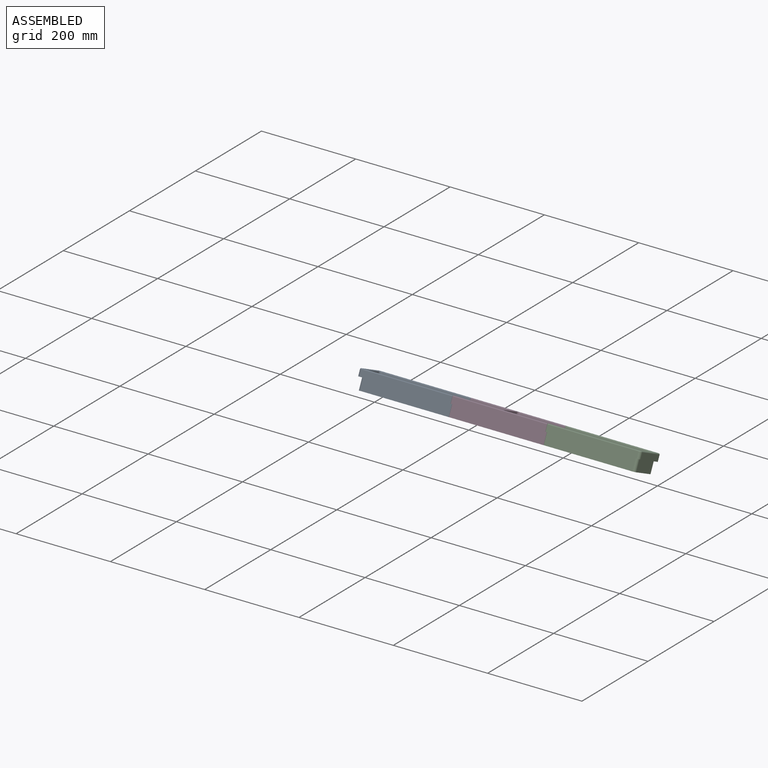
[diagram: assembled view]
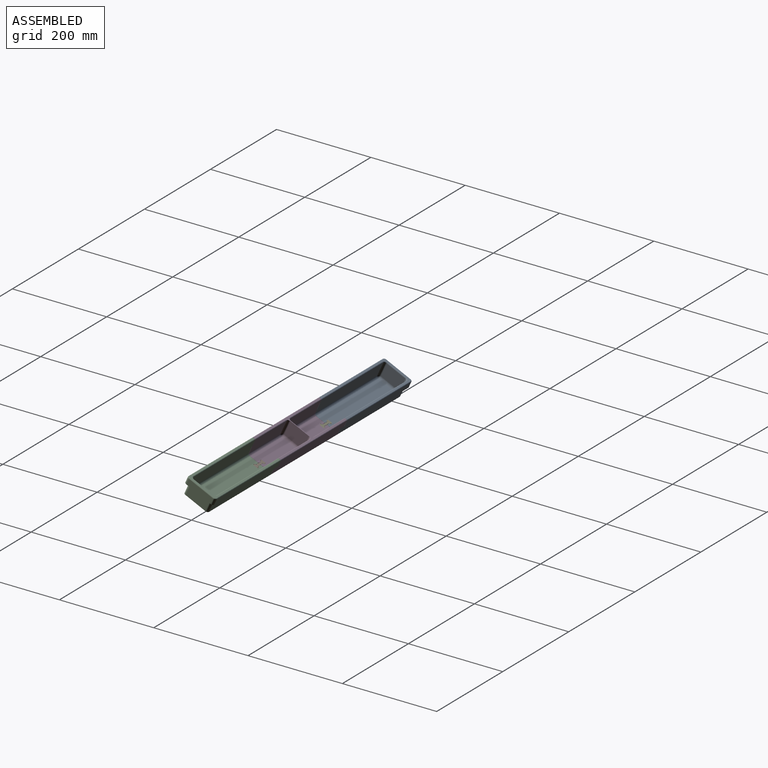
[diagram: assembled view, second angle]
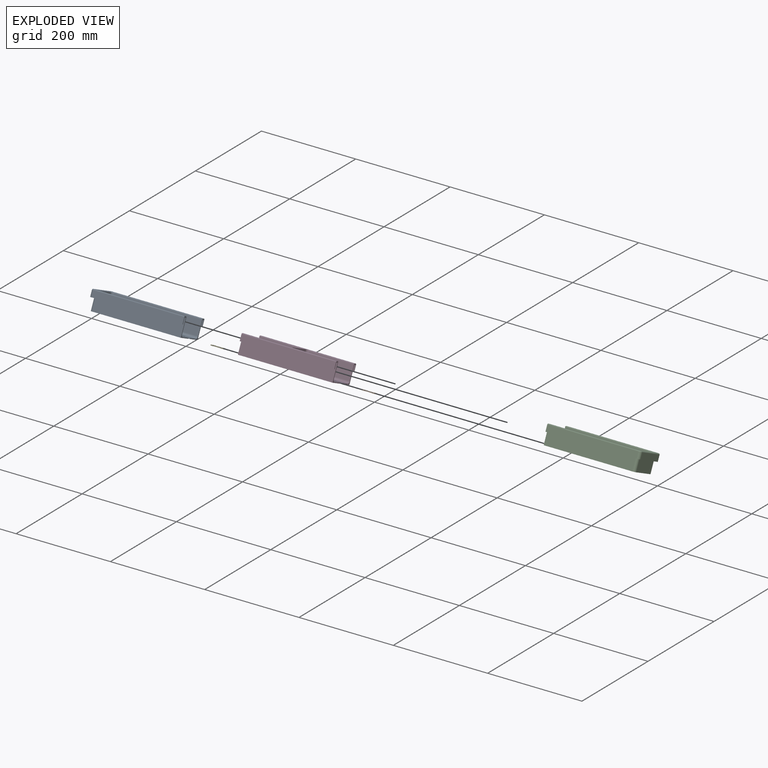
[diagram: exploded view]
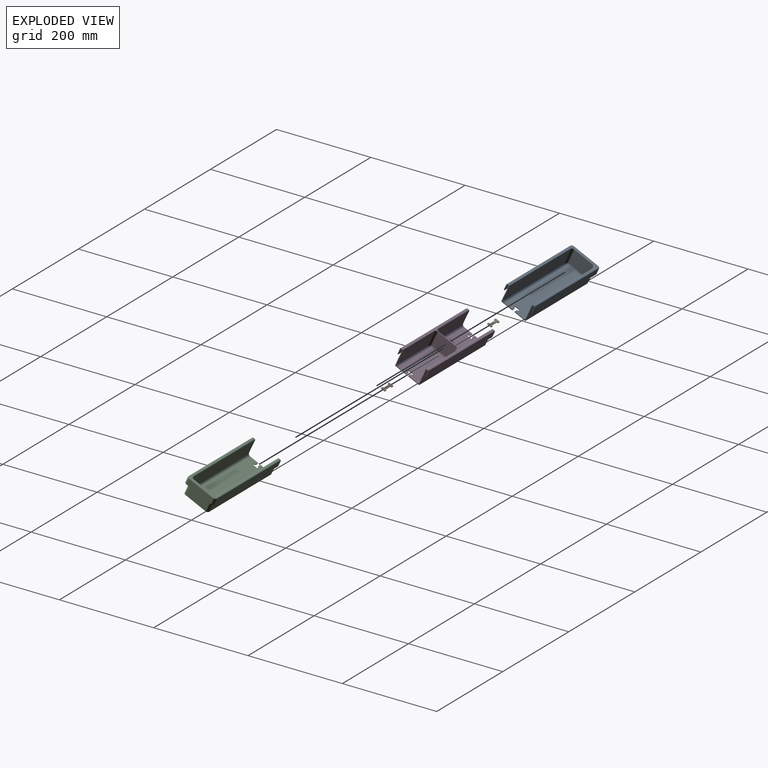
[diagram: exploded view, second angle]
ASSEMBLY  parts=5 mates=4
PART A: 78 faces, bbox 198.5x67.6x38.6 mm
  f0: plane 4.86x4.86mm, normal (0,0,-1), area 5.5mm2, adj f58,f59,f61,f69
  f1: plane 4.86x4.86mm, normal (0,0,-1), area 5.5mm2, adj f55,f56,f58,f67
  f2: plane 38.58x30.07mm, normal (1,0,0), area 136mm2, adj f3,f5,f7,f9,f12,f14,f16,f19
  f3: plane 191.41x11.2mm, normal (0,-1,0), area 2121mm2, adj f2,f7,f23,f24,f25,f56,f63,f66
  f4: plane 191.41x11.2mm, normal (0,1,0), area 2121mm2, adj f7,f8,f20,f21,f22,f59,f65,f68
  f5: plane 187.86x35.05mm, normal (0,1,0), area 6561.7mm2, adj f2,f12,f23,f24,f25,f40,f54,f62
  f6: plane 187.86x35.05mm, normal (0,-1,0), area 6561.7mm2, adj f8,f12,f20,f21,f22,f41,f60,f64
  f7: plane 198.12x66.75mm, normal (0,0,-1), area 747.4mm2, adj f2,f3,f4,f8,f10,f13,f14,f15
  f8: plane 38.58x30.07mm, normal (1,0,0), area 136mm2, adj f4,f6,f7,f9,f12,f15,f18,f19
  f9: plane 196.34x63.2mm, normal (0,0,1), area 1476.5mm2, adj f2,f8,f44,f45,f46,f47,f48,f49
  f10: plane 53.34x11.2mm, normal (1,0,0), area 597.5mm2, adj f7,f58,f66,f68
  f11: plane 46.23x35.05mm, normal (-1,0,0), area 1620.4mm2, adj f12,f40,f41,f57
  f12: plane 192.94x56.39mm, normal (0,0,-1), area 10778mm2, adj f2,f5,f6,f8,f11,f26,f27,f28
  f13: plane 56.59x12.95mm, normal (-1,0,0), area 733.1mm2, adj f7,f42,f43,f47
  f14: plane 193.04x12.95mm, normal (0,1,0), area 2500.6mm2, adj f2,f7,f42,f46
  f15: plane 193.04x12.95mm, normal (0,-1,0), area 2500.6mm2, adj f7,f8,f43,f44
  f16: plane 186.23x30.1mm, normal (0,-1,0), area 5605.4mm2, adj f2,f36,f39,f49
  f17: plane 42.98x30.1mm, normal (1,0,0), area 1293.6mm2, adj f34,f37,f39,f52
  f18: plane 186.23x30.1mm, normal (0,1,0), area 5605.4mm2, adj f8,f33,f34,f51
  f19: plane 186.23x42.98mm, normal (0,0,1), area 7913.4mm2, adj f2,f8,f26,f27,f28,f29,f30,f31
  f20: plane 11.01x3.56mm, normal (1,0,0), area 37.6mm2, adj f4,f6,f21,f64,f65
  f21: plane 3.56x2.54mm, normal (0,0,-1), area 9mm2, adj f4,f6,f20,f22
  f22: plane 11.01x3.56mm, normal (-1,0,0), area 37.6mm2, adj f4,f6,f21,f59,f60
  f23: plane 11.01x3.56mm, normal (-1,0,0), area 37.6mm2, adj f3,f5,f24,f54,f56
  f24: plane 3.56x2.54mm, normal (0,0,-1), area 9mm2, adj f3,f5,f23,f25
  f25: plane 11.01x3.56mm, normal (1,0,0), area 37.6mm2, adj f3,f5,f24,f62,f63
  f26: plane 6.1x1.63mm, normal (0,-1,0), area 9.9mm2, adj f12,f19,f70,f76
  f27: plane 6.1x1.63mm, normal (0,1,0), area 9.9mm2, adj f12,f19,f75,f77
  f28: plane 1.63x1.02mm, normal (-1,0,0), area 1.7mm2, adj f12,f19,f70,f71
  f29: plane 3.56x1.63mm, normal (0,-1,0), area 5.8mm2, adj f12,f19,f71,f72
  f30: plane 8.64x1.63mm, normal (1,0,0), area 14mm2, adj f12,f19,f72,f73
  f31: plane 3.56x1.63mm, normal (0,1,0), area 5.8mm2, adj f12,f19,f73,f74
  f32: plane 1.63x1.02mm, normal (-1,0,0), area 1.7mm2, adj f12,f19,f74,f75
  f33: cylinder r=5.08mm len=186.23mm, axis (1,0,0), area 1486.1mm2, adj f8,f18,f19,f35
  f34: cylinder r=5.08mm len=30.1mm, axis (0,0,1), area 240.2mm2, adj f17,f18,f35,f53
  f35: sphere r=5.08mm, area 40.5mm2, adj f33,f34,f37
  f36: cylinder r=5.08mm len=186.23mm, axis (-1,0,0), area 1486.1mm2, adj f2,f16,f19,f38
  f37: cylinder r=5.08mm len=42.98mm, axis (0,-1,0), area 342.9mm2, adj f17,f19,f35,f38
  f38: sphere r=5.08mm, area 40.5mm2, adj f36,f37,f39
  f39: cylinder r=5.08mm len=30.1mm, axis (0,0,-1), area 240.2mm2, adj f16,f17,f38,f50
  f40: cylinder r=5.08mm len=35.05mm, axis (0,0,1), area 279.7mm2, adj f5,f11,f12,f55
  f41: cylinder r=5.08mm len=35.05mm, axis (0,0,-1), area 279.7mm2, adj f6,f11,f12,f61
  f42: cylinder r=5.08mm len=12.95mm, axis (0,0,1), area 103.4mm2, adj f7,f13,f14,f48
  f43: cylinder r=5.08mm len=12.95mm, axis (0,0,-1), area 103.4mm2, adj f7,f13,f15,f45
  f44: cylinder r=1.78mm len=193.04mm, axis (-1,0,0), area 539.1mm2, adj f8,f9,f15,f45
  f45: torus R=3.3mm, axis (0,0,1), area 19.5mm2, adj f9,f43,f44,f47
  f46: cylinder r=1.78mm len=193.04mm, axis (1,0,0), area 539.1mm2, adj f2,f9,f14,f48
  f47: cylinder r=1.78mm len=56.59mm, axis (0,1,0), area 158.1mm2, adj f9,f13,f45,f48
  f48: torus R=3.3mm, axis (0,0,1), area 19.5mm2, adj f9,f42,f46,f47
  f49: cylinder r=1.78mm len=186.23mm, axis (1,0,0), area 520.1mm2, adj f2,f9,f16,f50
  f50: torus R=6.86mm, axis (0,0,1), area 25.1mm2, adj f9,f39,f49,f52
  f51: cylinder r=1.78mm len=186.23mm, axis (-1,0,0), area 520.1mm2, adj f8,f9,f18,f53
  f52: cylinder r=1.78mm len=42.98mm, axis (0,1,0), area 120mm2, adj f9,f17,f50,f53
  f53: torus R=6.86mm, axis (0,0,1), area 25.1mm2, adj f9,f34,f51,f52
  f54: cylinder r=1.91mm len=93.93mm, axis (1,0,0), area 269.1mm2, adj f5,f23,f55,f56
  f55: torus R=6.99mm, axis (0,0,1), area 26.8mm2, adj f1,f40,f54,f56,f57,f58
  f56: cylinder r=1.91mm len=97.49mm, axis (-1,0,0), area 279.6mm2, adj f1,f3,f23,f54,f55,f67
  f57: cylinder r=1.91mm len=46.23mm, axis (0,1,0), area 132.5mm2, adj f11,f55,f58,f61
  f58: cylinder r=1.91mm len=53.34mm, axis (0,-1,0), area 153.4mm2, adj f0,f1,f10,f55,f57,f61,f67,f69
  f59: cylinder r=1.91mm len=97.49mm, axis (1,0,0), area 279.6mm2, adj f0,f4,f22,f60,f61,f69
  f60: cylinder r=1.91mm len=93.93mm, axis (-1,0,0), area 269.1mm2, adj f6,f22,f59,f61
  f61: torus R=6.99mm, axis (0,0,1), area 26.8mm2, adj f0,f41,f57,f58,f59,f60
  f62: cylinder r=1.91mm len=91.39mm, axis (1,0,0), area 261.9mm2, adj f2,f5,f25,f63
  f63: cylinder r=1.91mm len=91.39mm, axis (-1,0,0), area 261.9mm2, adj f2,f3,f25,f62
  f64: cylinder r=1.91mm len=91.39mm, axis (-1,0,0), area 261.9mm2, adj f6,f8,f20,f65
  f65: cylinder r=1.91mm len=91.39mm, axis (1,0,0), area 261.9mm2, adj f4,f8,f20,f64
  f66: cylinder r=5.08mm len=11.2mm, axis (0,0,-1), area 89.4mm2, adj f3,f7,f10,f67
  f67: torus R=3.17mm, axis (0,0,1), area 20.6mm2, adj f1,f56,f58,f66
  f68: cylinder r=5.08mm len=11.2mm, axis (0,0,1), area 89.4mm2, adj f4,f7,f10,f69
  f69: torus R=3.17mm, axis (0,0,1), area 20.6mm2, adj f0,f58,f59,f68
  f70: cylinder r=0.76mm len=1.63mm, axis (0,0,1), area 1.9mm2, adj f12,f19,f26,f28
  f71: cylinder r=0.76mm len=1.63mm, axis (0,0,1), area 1.9mm2, adj f12,f19,f28,f29
  f72: cylinder r=0.76mm len=1.63mm, axis (0,0,-1), area 1.9mm2, adj f12,f19,f29,f30
  f73: cylinder r=0.76mm len=1.63mm, axis (0,0,1), area 1.9mm2, adj f12,f19,f30,f31
  f74: cylinder r=0.76mm len=1.63mm, axis (0,0,1), area 1.9mm2, adj f12,f19,f31,f32
  f75: cylinder r=0.76mm len=1.63mm, axis (0,0,-1), area 1.9mm2, adj f12,f19,f27,f32
  f76: cylinder r=0.76mm len=1.63mm, axis (0,0,1), area 1.9mm2, adj f2,f12,f19,f26
  f77: cylinder r=0.76mm len=1.63mm, axis (0,0,1), area 1.9mm2, adj f8,f12,f19,f27
PART B: 26 faces, bbox 25.7x9.7x1.6 mm
  f0: plane 1.63x1.02mm, normal (1,0,0), area 1.7mm2, adj f12,f13,f14,f19
  f1: plane 14.48x1.63mm, normal (0,-1,0), area 23.5mm2, adj f12,f13,f14,f21
  f2: plane 1.63x1.02mm, normal (-1,0,0), area 1.7mm2, adj f12,f13,f21,f22
  f3: plane 3.3x1.63mm, normal (0,-1,0), area 5.4mm2, adj f12,f13,f22,f23
  f4: plane 8.13x1.63mm, normal (1,0,0), area 13.2mm2, adj f12,f13,f23,f24
  f5: plane 3.3x1.63mm, normal (0,1,0), area 5.4mm2, adj f12,f13,f24,f25
  f6: plane 1.63x1.02mm, normal (-1,0,0), area 1.7mm2, adj f12,f13,f20,f25
  f7: plane 14.48x1.63mm, normal (0,1,0), area 23.5mm2, adj f12,f13,f15,f20
  f8: plane 1.63x1.02mm, normal (1,0,0), area 1.7mm2, adj f12,f13,f15,f16
  f9: plane 3.3x1.63mm, normal (0,1,0), area 5.4mm2, adj f12,f13,f16,f17
  f10: plane 8.13x1.63mm, normal (-1,0,0), area 13.2mm2, adj f12,f13,f17,f18
  f11: plane 3.3x1.63mm, normal (0,-1,0), area 5.4mm2, adj f12,f13,f18,f19
  f12: plane 25.65x9.65mm, normal (0,0,1), area 165.8mm2, adj f0,f1,f2,f3,f4,f5,f6,f7
  f13: plane 25.65x9.65mm, normal (0,0,-1), area 165.8mm2, adj f0,f1,f2,f3,f4,f5,f6,f7
  f14: cylinder r=0.76mm len=1.63mm, axis (0,0,-1), area 1.9mm2, adj f0,f1,f12,f13
  f15: cylinder r=0.76mm len=1.63mm, axis (0,0,-1), area 1.9mm2, adj f7,f8,f12,f13
  f16: cylinder r=0.76mm len=1.63mm, axis (0,0,1), area 1.9mm2, adj f8,f9,f12,f13
  f17: cylinder r=0.76mm len=1.63mm, axis (0,0,-1), area 1.9mm2, adj f9,f10,f12,f13
  f18: cylinder r=0.76mm len=1.63mm, axis (0,0,1), area 1.9mm2, adj f10,f11,f12,f13
  f19: cylinder r=0.76mm len=1.63mm, axis (0,0,1), area 1.9mm2, adj f0,f11,f12,f13
  f20: cylinder r=0.76mm len=1.63mm, axis (0,0,1), area 1.9mm2, adj f6,f7,f12,f13
  f21: cylinder r=0.76mm len=1.63mm, axis (0,0,1), area 1.9mm2, adj f1,f2,f12,f13
  f22: cylinder r=0.76mm len=1.63mm, axis (0,0,-1), area 1.9mm2, adj f2,f3,f12,f13
  f23: cylinder r=0.76mm len=1.63mm, axis (0,0,1), area 1.9mm2, adj f3,f4,f12,f13
  f24: cylinder r=0.76mm len=1.63mm, axis (0,0,-1), area 1.9mm2, adj f4,f5,f12,f13
  f25: cylinder r=0.76mm len=1.63mm, axis (0,0,-1), area 1.9mm2, adj f5,f6,f12,f13
PART C: same geometry as A
PART D: 86 faces, bbox 200.7x66.8x48.1 mm
  f0: plane 94.44x42.98mm, normal (0,0,1), area 3968.3mm2, adj f3,f12,f26,f27,f28,f29,f30,f31
  f1: plane 94.44x30.1mm, normal (0,-1,0), area 2842.5mm2, adj f3,f58,f74,f75
  f2: plane 94.44x30.1mm, normal (0,1,0), area 2842.5mm2, adj f12,f59,f77,f80
  f3: plane 38.58x30.07mm, normal (-1,0,0), area 135.8mm2, adj f0,f1,f5,f7,f9,f14,f15,f16
  f4: plane 38.58x30.07mm, normal (1,0,0), area 135.8mm2, adj f5,f6,f7,f9,f14,f15,f16,f18
  f5: plane 200.66x56.39mm, normal (0,0,-1), area 11134.2mm2, adj f3,f4,f9,f10,f12,f13,f26,f27
  f6: plane 94.44x42.98mm, normal (0,0,1), area 3968.3mm2, adj f4,f13,f33,f34,f35,f36,f37,f38
  f7: plane 200.66x11.33mm, normal (0,-1,0), area 2249.7mm2, adj f3,f4,f14,f23,f24,f25,f82,f85
  f8: plane 200.66x11.33mm, normal (0,1,0), area 2249.7mm2, adj f11,f12,f13,f20,f21,f22,f83,f84
  f9: plane 200.66x35.18mm, normal (0,1,0), area 7035.6mm2, adj f3,f4,f5,f23,f24,f25,f82,f85
  f10: plane 200.66x35.18mm, normal (0,-1,0), area 7035.6mm2, adj f5,f12,f13,f20,f21,f22,f83,f84
  f11: plane 200.66x1.63mm, normal (0,0,-1), area 326.2mm2, adj f8,f12,f13,f17
  f12: plane 38.58x30.07mm, normal (-1,0,0), area 135.8mm2, adj f0,f2,f5,f8,f10,f11,f15,f17
  f13: plane 38.58x30.07mm, normal (1,0,0), area 135.8mm2, adj f5,f6,f8,f10,f11,f15,f17,f19
  f14: plane 200.66x1.63mm, normal (0,0,-1), area 326.2mm2, adj f3,f4,f7,f16
  f15: plane 200.66x63.2mm, normal (0,0,1), area 1438mm2, adj f3,f4,f12,f13,f56,f57,f58,f59
  f16: plane 200.66x12.95mm, normal (0,1,0), area 2599.3mm2, adj f3,f4,f14,f62
  f17: plane 200.66x12.95mm, normal (0,-1,0), area 2599.3mm2, adj f11,f12,f13,f63
  f18: plane 94.44x30.1mm, normal (0,-1,0), area 2842.5mm2, adj f4,f60,f65,f66
  f19: plane 94.44x30.1mm, normal (0,1,0), area 2842.5mm2, adj f13,f61,f69,f71
  f20: plane 11.02x3.56mm, normal (1,0,0), area 37.8mm2, adj f8,f10,f21,f83
  f21: plane 3.56x2.54mm, normal (0,0,-1), area 9mm2, adj f8,f10,f20,f22
  f22: plane 11.02x3.56mm, normal (-1,0,0), area 37.8mm2, adj f8,f10,f21,f84
  f23: plane 11.02x3.56mm, normal (-1,0,0), area 37.8mm2, adj f7,f9,f24,f85
  f24: plane 3.56x2.54mm, normal (0,0,-1), area 9mm2, adj f7,f9,f23,f25
  f25: plane 11.02x3.56mm, normal (1,0,0), area 37.8mm2, adj f7,f9,f24,f82
  f26: plane 6.1x1.63mm, normal (0,-1,0), area 9.9mm2, adj f0,f5,f45,f47
  f27: plane 6.1x1.63mm, normal (0,1,0), area 9.9mm2, adj f0,f5,f40,f46
  f28: plane 1.63x1.02mm, normal (1,0,0), area 1.7mm2, adj f0,f5,f44,f45
  f29: plane 1.63x1.02mm, normal (1,0,0), area 1.7mm2, adj f0,f5,f40,f41
  f30: plane 3.56x1.63mm, normal (0,1,0), area 5.8mm2, adj f0,f5,f41,f42
  f31: plane 8.64x1.63mm, normal (-1,0,0), area 14mm2, adj f0,f5,f42,f43
  f32: plane 3.56x1.63mm, normal (0,-1,0), area 5.8mm2, adj f0,f5,f43,f44
  f33: plane 6.1x1.63mm, normal (0,1,0), area 9.9mm2, adj f5,f6,f48,f50
  f34: plane 6.1x1.63mm, normal (0,-1,0), area 9.9mm2, adj f5,f6,f49,f55
  f35: plane 1.63x1.02mm, normal (-1,0,0), area 1.7mm2, adj f5,f6,f54,f55
  f36: plane 3.56x1.63mm, normal (0,-1,0), area 5.8mm2, adj f5,f6,f53,f54
  f37: plane 8.64x1.63mm, normal (1,0,0), area 14mm2, adj f5,f6,f52,f53
  f38: plane 3.56x1.63mm, normal (0,1,0), area 5.8mm2, adj f5,f6,f51,f52
  f39: plane 1.63x1.02mm, normal (-1,0,0), area 1.7mm2, adj f5,f6,f50,f51
  f40: cylinder r=0.76mm len=1.63mm, axis (0,0,1), area 1.9mm2, adj f0,f5,f27,f29
  f41: cylinder r=0.76mm len=1.63mm, axis (0,0,-1), area 1.9mm2, adj f0,f5,f29,f30
  f42: cylinder r=0.76mm len=1.63mm, axis (0,0,1), area 1.9mm2, adj f0,f5,f30,f31
  f43: cylinder r=0.76mm len=1.63mm, axis (0,0,-1), area 1.9mm2, adj f0,f5,f31,f32
  f44: cylinder r=0.76mm len=1.63mm, axis (0,0,-1), area 1.9mm2, adj f0,f5,f28,f32
  f45: cylinder r=0.76mm len=1.63mm, axis (0,0,1), area 1.9mm2, adj f0,f5,f26,f28
  f46: cylinder r=0.76mm len=1.63mm, axis (0,0,-1), area 1.9mm2, adj f0,f5,f12,f27
  f47: cylinder r=0.76mm len=1.63mm, axis (0,0,1), area 1.9mm2, adj f0,f3,f5,f26
  f48: cylinder r=0.76mm len=1.63mm, axis (0,0,-1), area 1.9mm2, adj f5,f6,f13,f33
  f49: cylinder r=0.76mm len=1.63mm, axis (0,0,1), area 1.9mm2, adj f4,f5,f6,f34
  f50: cylinder r=0.76mm len=1.63mm, axis (0,0,1), area 1.9mm2, adj f5,f6,f33,f39
  f51: cylinder r=0.76mm len=1.63mm, axis (0,0,1), area 1.9mm2, adj f5,f6,f38,f39
  f52: cylinder r=0.76mm len=1.63mm, axis (0,0,1), area 1.9mm2, adj f5,f6,f37,f38
  f53: cylinder r=0.76mm len=1.63mm, axis (0,0,-1), area 1.9mm2, adj f5,f6,f36,f37
  f54: cylinder r=0.76mm len=1.63mm, axis (0,0,1), area 1.9mm2, adj f5,f6,f35,f36
  f55: cylinder r=0.76mm len=1.63mm, axis (0,0,1), area 1.9mm2, adj f5,f6,f34,f35
  f56: plane 43.45x31.88mm, normal (1,0,0), area 1370.2mm2, adj f15,f64,f65,f68,f71,f72
  f57: plane 43.45x31.88mm, normal (-1,0,0), area 1370.2mm2, adj f15,f73,f75,f78,f80,f81
  f58: cylinder r=1.78mm len=94.44mm, axis (1,0,0), area 263.8mm2, adj f1,f3,f15,f73
  f59: cylinder r=1.78mm len=94.44mm, axis (-1,0,0), area 263.8mm2, adj f2,f12,f15,f81
  f60: cylinder r=1.78mm len=94.44mm, axis (1,0,0), area 263.8mm2, adj f4,f15,f18,f64
  f61: cylinder r=1.78mm len=94.44mm, axis (-1,0,0), area 263.8mm2, adj f13,f15,f19,f72
  f62: cylinder r=1.78mm len=200.66mm, axis (1,0,0), area 560.4mm2, adj f3,f4,f15,f16
  f63: cylinder r=1.78mm len=200.66mm, axis (-1,0,0), area 560.4mm2, adj f12,f13,f15,f17
  f64: torus R=6.86mm, axis (1,0,0), area 15.9mm2, adj f15,f56,f60,f65
  f65: cylinder r=5.08mm len=30.1mm, axis (0,0,-1), area 240.2mm2, adj f18,f56,f64,f67
  f66: cylinder r=5.08mm len=94.44mm, axis (-1,0,0), area 753.6mm2, adj f4,f6,f18,f67
  f67: sphere r=5.08mm, area 40.5mm2, adj f65,f66,f68
  f68: cylinder r=5.08mm len=42.98mm, axis (0,-1,0), area 342.9mm2, adj f6,f56,f67,f70
  f69: cylinder r=5.08mm len=94.44mm, axis (1,0,0), area 753.6mm2, adj f6,f13,f19,f70
  f70: sphere r=5.08mm, area 40.5mm2, adj f68,f69,f71
  f71: cylinder r=5.08mm len=30.1mm, axis (0,0,1), area 240.2mm2, adj f19,f56,f70,f72
  f72: torus R=6.86mm, axis (1,0,0), area 15.9mm2, adj f15,f56,f61,f71
  f73: torus R=6.86mm, axis (1,0,0), area 15.9mm2, adj f15,f57,f58,f75
  f74: cylinder r=5.08mm len=94.44mm, axis (-1,0,0), area 753.6mm2, adj f0,f1,f3,f76
  f75: cylinder r=5.08mm len=30.1mm, axis (0,0,1), area 240.2mm2, adj f1,f57,f73,f76
  f76: sphere r=5.08mm, area 40.5mm2, adj f74,f75,f78
  f77: cylinder r=5.08mm len=94.44mm, axis (1,0,0), area 753.6mm2, adj f0,f2,f12,f79
  f78: cylinder r=5.08mm len=42.98mm, axis (0,1,0), area 342.9mm2, adj f0,f57,f76,f79
  f79: sphere r=5.08mm, area 40.5mm2, adj f77,f78,f80
  f80: cylinder r=5.08mm len=30.1mm, axis (0,0,-1), area 240.2mm2, adj f2,f57,f79,f81
  f81: torus R=6.86mm, axis (1,0,0), area 15.9mm2, adj f15,f57,f59,f80
  f82: cylinder r=1.78mm len=96.47mm, axis (1,0,0), area 538.9mm2, adj f4,f7,f9,f25
  f83: cylinder r=1.78mm len=96.47mm, axis (-1,0,0), area 538.9mm2, adj f8,f10,f13,f20
  f84: cylinder r=1.78mm len=101.65mm, axis (-1,0,0), area 567.8mm2, adj f8,f10,f12,f22
  f85: cylinder r=1.78mm len=101.65mm, axis (1,0,0), area 567.8mm2, adj f3,f7,f9,f23
PART E: same geometry as B
PLACE A rot(axis=(-1,0,0),25deg) t=(11.37,-0.1,-7.87)mm
PLACE B rot(axis=(-1,0,0),25deg) t=(-25.46,-8.7,-3.86)mm
PLACE C rot(axis=(0,0.22,0.98),180deg) t=(-247.2,-17.29,0.15)mm
PLACE D rot(axis=(-1,0,0),25deg) t=(207.21,-0.1,-7.87)mm
PLACE E rot(axis=(-1,0,0),25deg) t=(-226.37,-8.7,-3.86)mm
MATE fastened E.f4 <-> D.f31  axis (1,0,0) through (-205.54,-8.35,-3.12)mm
MATE fastened B.f4 <-> C.f30  axis (1,0,0) through (-4.63,-8.35,-3.12)mm
MATE fastened D.f37 <-> B.f10  axis (1,0,0) through (-30.28,-8.35,-3.12)mm
MATE fastened E.f10 <-> A.f30  axis (-1,0,0) through (-231.2,-8.35,-3.12)mm
